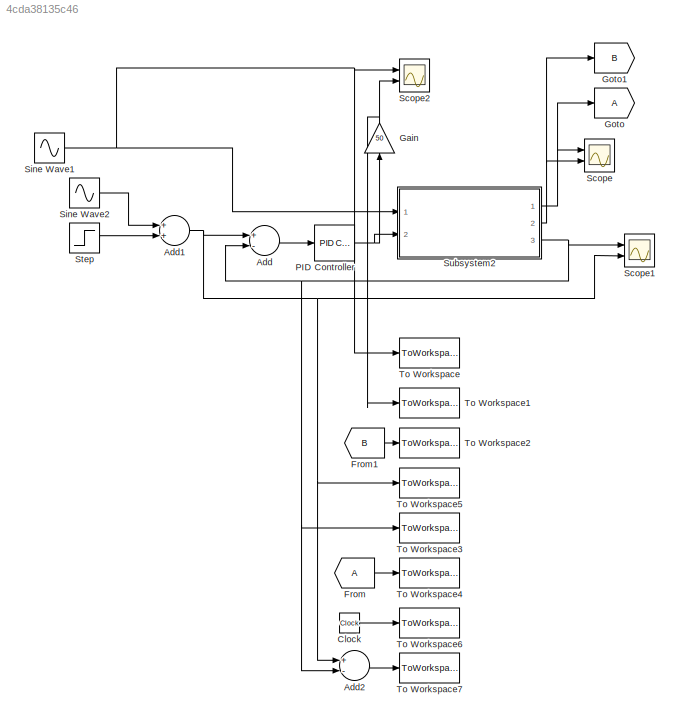
MODEL slx_4cda38135c46
KIND model
CONFIG AbsTol = auto
CONFIG EnableMultiTasking = off
CONFIG FixedStep = 0.01
CONFIG MaxStep = auto
CONFIG MinStep = auto
CONFIG RelTol = 1e-3
CONFIG SampleTimeConstraint = Unconstrained
CONFIG Solver = FixedStepAuto
CONFIG SolverName = FixedStepAuto
CONFIG StartTime = 0.0
CONFIG StopTime = 10.0
BLOCK [Sum] Add
  InputSameDT = off
  Inputs = +-
  OutDataTypeStr = Inherit: Inherit via internal rule
  Ports = [2, 1]
  SaturateOnIntegerOverflow = off
BLOCK [Sum] Add1
  InputSameDT = off
  OutDataTypeStr = Inherit: Inherit via internal rule
  Ports = [2, 1]
  SaturateOnIntegerOverflow = off
BLOCK [Sum] Add2
  InputSameDT = off
  Inputs = +-
  OutDataTypeStr = Inherit: Inherit via internal rule
  Ports = [2, 1]
  SaturateOnIntegerOverflow = off
BLOCK [Clock] Clock
BLOCK [From] From
BLOCK [From] From1
  GotoTag = B
BLOCK [Gain] Gain
  Gain = 50
  OutDataTypeStr = Inherit: Inherit via internal rule
  ParamDataTypeStr = Inherit: Inherit via internal rule
  SaturateOnIntegerOverflow = off
BLOCK [Goto] Goto
BLOCK [Goto] Goto1
  GotoTag = B
BLOCK [Reference] PID Controller  REF=simulink/Continuous/PID Controller
  Ports = [1, 1]
  SourceBlock = simulink/Continuous/PID Controller
  SourceProductBaseCode = SL
  SourceProductName = Simulink
  SourceType = PID 1dof
BLOCK [Scope] Scope
  Floating = off
  NumInputPorts = 2
  Ports = [2]
  ScopeSpecificationString = Simulink.scopes.TimeScopeBlockCfg('CurrentConfiguration', extmgr.ConfigurationSet(extmgr.Configuration('Core','General UI',true),extmgr.Configuration('Core','Source UI',true),extmgr.Configuration('Sources','WiredSimulink',true),extmgr.Configuration('Visuals','Time Domain',true,'SerializedDisplays',{struct('MinYLimReal','-1.83765','MaxYLimReal','1.83765','YLabelReal','','MinYLimMag','0.00000','MaxY...<+1347ch>
BLOCK [Scope] Scope1
  Floating = off
  NumInputPorts = 2
  Ports = [2]
  ScopeSpecificationString = Simulink.scopes.TimeScopeBlockCfg('CurrentConfiguration', extmgr.ConfigurationSet(extmgr.Configuration('Core','General UI',true),extmgr.Configuration('Core','Source UI',true),extmgr.Configuration('Sources','WiredSimulink',true,'DataLoggingVariableName','ScopeData1'),extmgr.Configuration('Visuals','Time Domain',true,'SerializedDisplays',{struct('MinYLimReal','0.00219','MaxYLimReal','0.06642','YLabe...<+1376ch>
BLOCK [Scope] Scope2
  Floating = off
  NumInputPorts = 2
  Ports = [2]
  ScopeSpecificationString = Simulink.scopes.TimeScopeBlockCfg('CurrentConfiguration', extmgr.ConfigurationSet(extmgr.Configuration('Core','General UI',true),extmgr.Configuration('Core','Source UI',true),extmgr.Configuration('Sources','WiredSimulink',true,'DataLoggingVariableName','ScopeData2'),extmgr.Configuration('Visuals','Time Domain',true,'SerializedDisplays',{struct('MinYLimReal','-37.4999','MaxYLimReal','37.49998','YLa...<+1407ch>
BLOCK [Sin] Sine Wave1
  Amplitude = 30
  Ports = [0, 1]
  SampleTime = 0
BLOCK [Sin] Sine Wave2
  Amplitude = 0.01
  Ports = [0, 1]
  SampleTime = 0
BLOCK [Step] Step
  After = 0.05
  SampleTime = 0
  Time = 0
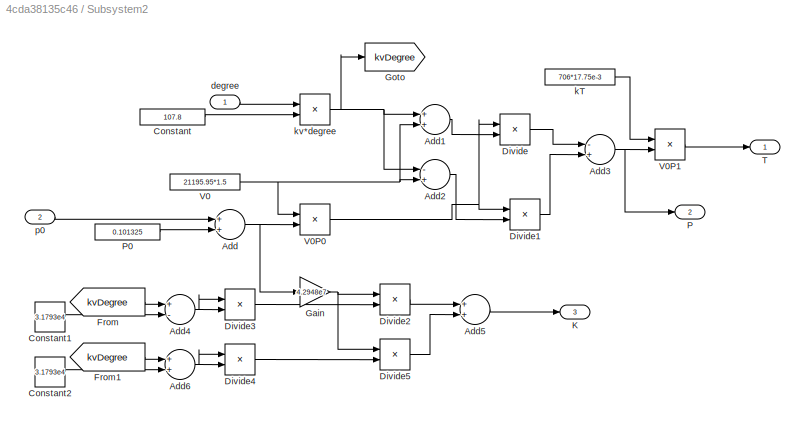
BLOCK [SubSystem] Subsystem2
  Ports = [2, 3]
  RequestExecContextInheritance = off
BLOCK [Sum] Subsystem2/Add
  InputSameDT = off
  OutDataTypeStr = Inherit: Inherit via internal rule
  Ports = [2, 1]
  SaturateOnIntegerOverflow = off
BLOCK [Sum] Subsystem2/Add1
  InputSameDT = off
  OutDataTypeStr = Inherit: Inherit via internal rule
  Ports = [2, 1]
  SaturateOnIntegerOverflow = off
BLOCK [Sum] Subsystem2/Add2
  InputSameDT = off
  Inputs = -+
  OutDataTypeStr = Inherit: Inherit via internal rule
  Ports = [2, 1]
  SaturateOnIntegerOverflow = off
BLOCK [Sum] Subsystem2/Add3
  InputSameDT = off
  Inputs = -+
  OutDataTypeStr = Inherit: Inherit via internal rule
  Ports = [2, 1]
  SaturateOnIntegerOverflow = off
BLOCK [Sum] Subsystem2/Add4
  InputSameDT = off
  Inputs = +-
  OutDataTypeStr = Inherit: Inherit via internal rule
  Ports = [2, 1]
  SaturateOnIntegerOverflow = off
BLOCK [Sum] Subsystem2/Add5
  InputSameDT = off
  OutDataTypeStr = Inherit: Inherit via internal rule
  Ports = [2, 1]
  SaturateOnIntegerOverflow = off
BLOCK [Sum] Subsystem2/Add6
  InputSameDT = off
  OutDataTypeStr = Inherit: Inherit via internal rule
  Ports = [2, 1]
  SaturateOnIntegerOverflow = off
BLOCK [Constant] Subsystem2/Constant
  Value = 107.8
BLOCK [Constant] Subsystem2/Constant1
  Value = 3.1793e4
BLOCK [Constant] Subsystem2/Constant2
  Value = 3.1793e4
BLOCK [Product] Subsystem2/Divide
  InputSameDT = off
  Inputs = */
  OutDataTypeStr = Inherit: Inherit via internal rule
  Ports = [2, 1]
  RndMeth = Floor
  SaturateOnIntegerOverflow = off
BLOCK [Product] Subsystem2/Divide1
  InputSameDT = off
  Inputs = */
  OutDataTypeStr = Inherit: Inherit via internal rule
  Ports = [2, 1]
  RndMeth = Floor
  SaturateOnIntegerOverflow = off
BLOCK [Product] Subsystem2/Divide2
  InputSameDT = off
  Inputs = */
  OutDataTypeStr = Inherit: Inherit via internal rule
  Ports = [2, 1]
  RndMeth = Floor
  SaturateOnIntegerOverflow = off
BLOCK [Product] Subsystem2/Divide3
  InputSameDT = off
  Inputs = **
  OutDataTypeStr = Inherit: Inherit via internal rule
  Ports = [2, 1]
  RndMeth = Floor
  SaturateOnIntegerOverflow = off
BLOCK [Product] Subsystem2/Divide4
  InputSameDT = off
  Inputs = **
  OutDataTypeStr = Inherit: Inherit via internal rule
  Ports = [2, 1]
  RndMeth = Floor
  SaturateOnIntegerOverflow = off
BLOCK [Product] Subsystem2/Divide5
  InputSameDT = off
  Inputs = */
  OutDataTypeStr = Inherit: Inherit via internal rule
  Ports = [2, 1]
  RndMeth = Floor
  SaturateOnIntegerOverflow = off
BLOCK [From] Subsystem2/From
  GotoTag = kvDegree
BLOCK [From] Subsystem2/From1
  GotoTag = kvDegree
BLOCK [Gain] Subsystem2/Gain
  Gain = 4.2948e7
  OutDataTypeStr = Inherit: Inherit via internal rule
  ParamDataTypeStr = Inherit: Inherit via internal rule
  SaturateOnIntegerOverflow = off
BLOCK [Goto] Subsystem2/Goto
  GotoTag = kvDegree
BLOCK [Outport] Subsystem2/K
  IconDisplay = Port number
  Port = 3
BLOCK [Outport] Subsystem2/P
  IconDisplay = Port number
  Port = 2
BLOCK [Constant] Subsystem2/P0
  Value = 0.101325
BLOCK [Outport] Subsystem2/T
  IconDisplay = Port number
BLOCK [Constant] Subsystem2/V0
  Value = 21195.95*1.5
BLOCK [Product] Subsystem2/V0P0
  InputSameDT = off
  OutDataTypeStr = Inherit: Inherit via internal rule
  Ports = [2, 1]
  RndMeth = Floor
  SaturateOnIntegerOverflow = off
BLOCK [Product] Subsystem2/V0P1
  InputSameDT = off
  OutDataTypeStr = Inherit: Inherit via internal rule
  Ports = [2, 1]
  RndMeth = Floor
  SaturateOnIntegerOverflow = off
BLOCK [Inport] Subsystem2/degree
  IconDisplay = Port number
BLOCK [Constant] Subsystem2/kT
  Value = 706*17.75e-3
BLOCK [Product] Subsystem2/kv*degree
  InputSameDT = off
  OutDataTypeStr = Inherit: Inherit via internal rule
  Ports = [2, 1]
  RndMeth = Floor
  SaturateOnIntegerOverflow = off
BLOCK [Inport] Subsystem2/p0
  IconDisplay = Port number
  Port = 2
BLOCK [ToWorkspace] To Workspace
  FixptAsFi = on
  MaxDataPoints = inf
  Ports = [1]
  SampleTime = -1
  Save2DSignal = 2-D array (concatenate along first dimension)
  VariableName = mainMotor
BLOCK [ToWorkspace] To Workspace1
  FixptAsFi = on
  MaxDataPoints = inf
  Ports = [1]
  SampleTime = -1
  Save2DSignal = 2-D array (concatenate along first dimension)
  VariableName = stiffnessMotor
BLOCK [ToWorkspace] To Workspace2
  FixptAsFi = on
  MaxDataPoints = inf
  Ports = [1]
  SampleTime = -1
  Save2DSignal = 2-D array (concatenate along first dimension)
  VariableName = pressure
BLOCK [ToWorkspace] To Workspace3
  FixptAsFi = on
  MaxDataPoints = inf
  Ports = [1]
  SampleTime = -1
  Save2DSignal = 2-D array (concatenate along first dimension)
  VariableName = stiffness
BLOCK [ToWorkspace] To Workspace4
  FixptAsFi = on
  MaxDataPoints = inf
  Ports = [1]
  SampleTime = -1
  Save2DSignal = 2-D array (concatenate along first dimension)
  VariableName = torque
BLOCK [ToWorkspace] To Workspace5
  FixptAsFi = on
  MaxDataPoints = inf
  Ports = [1]
  SampleTime = -1
  Save2DSignal = 2-D array (concatenate along first dimension)
  VariableName = setStiffness
BLOCK [ToWorkspace] To Workspace6
  FixptAsFi = on
  MaxDataPoints = inf
  Ports = [1]
  SampleTime = -1
  Save2DSignal = 2-D array (concatenate along first dimension)
  VariableName = Time
BLOCK [ToWorkspace] To Workspace7
  FixptAsFi = on
  MaxDataPoints = inf
  Ports = [1]
  SampleTime = -1
  Save2DSignal = 2-D array (concatenate along first dimension)
  VariableName = err
NET Add1:1 -> Add2:1, Add:1, Scope1:2, To Workspace5:1
LINE Add2:1 -> To Workspace7:1
LINE Add:1 -> PID Controller:1
LINE Clock:1 -> To Workspace6:1
LINE From1:1 -> To Workspace2:1
LINE From:1 -> To Workspace4:1
NET Gain:1 -> Scope2:2, To Workspace1:1
NET PID Controller:1 -> Gain:1, Subsystem2:2
NET Sine Wave1:1 -> Scope2:1, Subsystem2:1, To Workspace:1
LINE Sine Wave2:1 -> Add1:1
LINE Step:1 -> Add1:2
LINE Subsystem2/Add1:1 -> Subsystem2/Divide:2
LINE Subsystem2/Add2:1 -> Subsystem2/Divide1:2
NET Subsystem2/Add3:1 -> Subsystem2/P:1, Subsystem2/V0P1:2
NET Subsystem2/Add4:1 -> Subsystem2/Divide3:1, Subsystem2/Divide3:2
LINE Subsystem2/Add5:1 -> Subsystem2/K:1
NET Subsystem2/Add6:1 -> Subsystem2/Divide4:1, Subsystem2/Divide4:2
NET Subsystem2/Add:1 -> Subsystem2/Gain:1, Subsystem2/V0P0:2
LINE Subsystem2/Constant1:1 -> Subsystem2/Add4:2
LINE Subsystem2/Constant2:1 -> Subsystem2/Add6:2
LINE Subsystem2/Constant:1 -> Subsystem2/kv*degree:2
LINE Subsystem2/Divide1:1 -> Subsystem2/Add3:2
LINE Subsystem2/Divide2:1 -> Subsystem2/Add5:1
LINE Subsystem2/Divide3:1 -> Subsystem2/Divide2:2
LINE Subsystem2/Divide4:1 -> Subsystem2/Divide5:2
LINE Subsystem2/Divide5:1 -> Subsystem2/Add5:2
LINE Subsystem2/Divide:1 -> Subsystem2/Add3:1
LINE Subsystem2/From1:1 -> Subsystem2/Add6:1
LINE Subsystem2/From:1 -> Subsystem2/Add4:1
NET Subsystem2/Gain:1 -> Subsystem2/Divide2:1, Subsystem2/Divide5:1
LINE Subsystem2/P0:1 -> Subsystem2/Add:2
NET Subsystem2/V0:1 -> Subsystem2/Add1:2, Subsystem2/Add2:2, Subsystem2/V0P0:1
NET Subsystem2/V0P0:1 -> Subsystem2/Divide1:1, Subsystem2/Divide:1
LINE Subsystem2/V0P1:1 -> Subsystem2/T:1
LINE Subsystem2/degree:1 -> Subsystem2/kv*degree:1
LINE Subsystem2/kT:1 -> Subsystem2/V0P1:1
NET Subsystem2/kv*degree:1 -> Subsystem2/Add1:1, Subsystem2/Add2:1, Subsystem2/Goto:1
LINE Subsystem2/p0:1 -> Subsystem2/Add:1
NET Subsystem2:1 -> Goto:1, Scope:1
NET Subsystem2:2 -> Goto1:1, Scope:2
NET Subsystem2:3 -> Add2:2, Add:2, Scope1:1, To Workspace3:1
note: NET lines group one-source signal fan-out (src -> all destinations, sorted); 1:1 wires keep LINE
